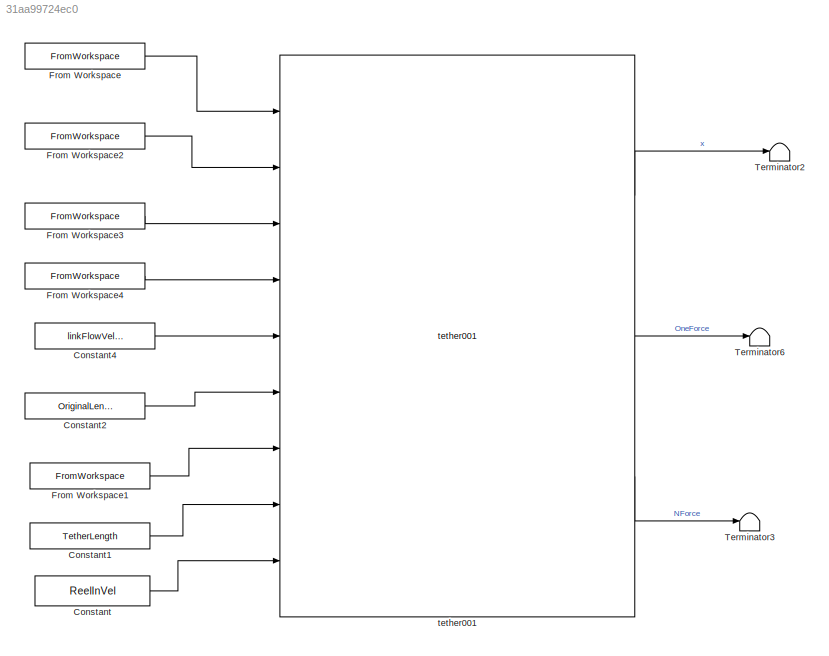
MODEL slx_31aa99724ec0
KIND model
CONFIG AbsTol = auto
CONFIG EnableMultiTasking = off
CONFIG FixedStep = auto
CONFIG MaxStep = auto
CONFIG MinStep = auto
CONFIG RelTol = 1e-3
CONFIG SampleTimeConstraint = Unconstrained
CONFIG SolverName = VariableStepAuto
CONFIG StartTime = 0.0
CONFIG StopTime = simTime
BLOCK [Constant] Constant
  Value = ReelInVel
BLOCK [Constant] Constant1
  Value = TetherLength
BLOCK [Constant] Constant2
  Value = OriginalLengths
BLOCK [Constant] Constant4
  Value = linkFlowVelVecs
BLOCK [FromWorkspace] From Workspace
  VariableName = gndNodePosTS
BLOCK [FromWorkspace] From Workspace1
  Interpolate = off
  OutputAfterFinalValue = Holding final value
  VariableName = ReeledOutLengthTS
BLOCK [FromWorkspace] From Workspace2
  VariableName = gndNodeVelTS
BLOCK [FromWorkspace] From Workspace3
  VariableName = airNodePosTS
BLOCK [FromWorkspace] From Workspace4
  VariableName = airNodeVelTS
BLOCK [Terminator] Terminator2
BLOCK [Terminator] Terminator3
BLOCK [Terminator] Terminator6
BLOCK [Reference] tether001  REF=tether005_ul/tether001  (lib defined in slx_5e7734a5d36b)
  Ports = [9, 3]
  SourceBlock = tether005_ul/tether001
  SourceType = SubSystem
LINE Constant1:1 -> tether001:8
LINE Constant2:1 -> tether001:6
LINE Constant4:1 -> tether001:5
LINE Constant:1 -> tether001:9
LINE From Workspace1:1 -> tether001:7
LINE From Workspace2:1 -> tether001:2
LINE From Workspace3:1 -> tether001:3
LINE From Workspace4:1 -> tether001:4
LINE From Workspace:1 -> tether001:1
LINE tether001:1 -> Terminator2:1
LINE tether001:2 -> Terminator6:1
LINE tether001:3 -> Terminator3:1
